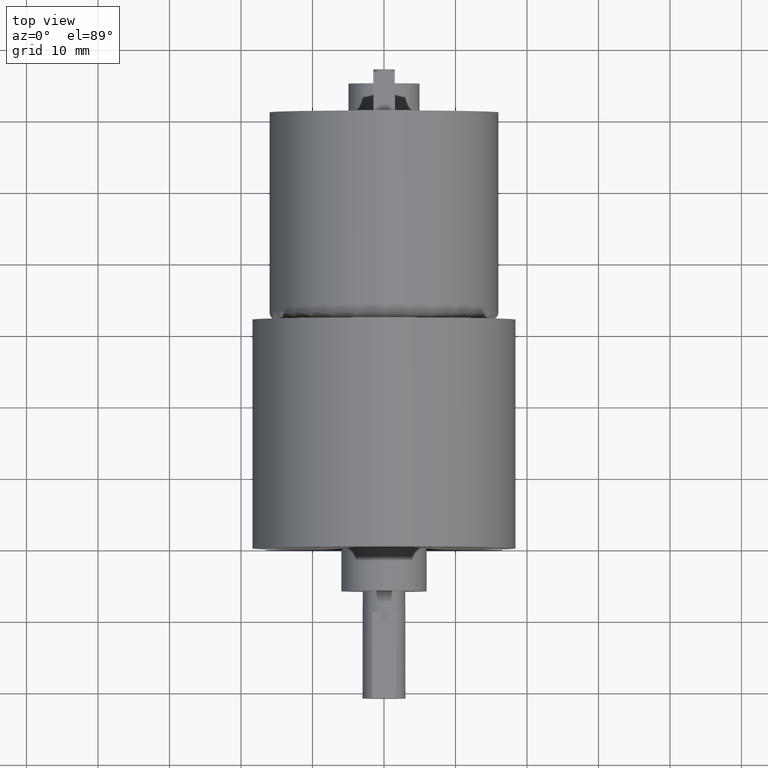
[diagram: clean part render]
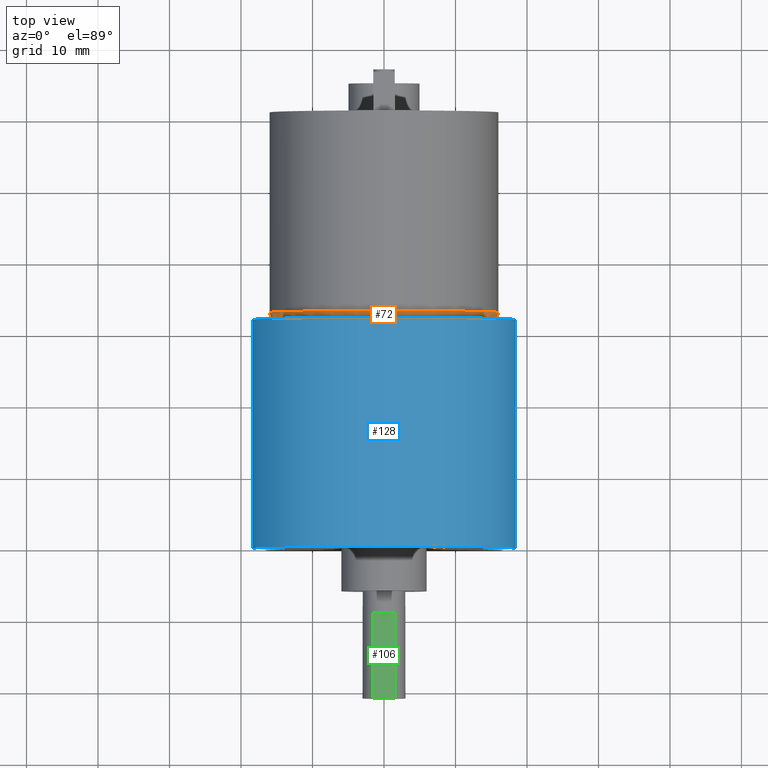
[diagram: same view with three faces highlighted in distinct colors, each labeled with its STEP entity id]
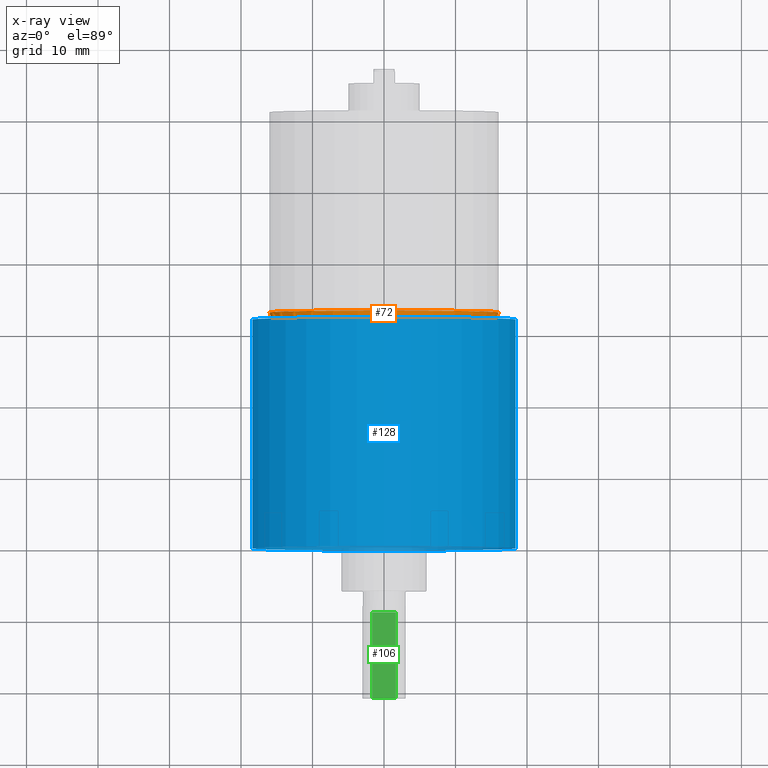
[diagram: x-ray of the same camera — body ghosted, the three highlighted faces saturated]
A machine part, top view with three faces highlighted in distinct colors.
The next image is the same camera in x-ray (body ghosted, the three faces saturated) — at least one of them is partly hidden behind the body in this view.
Their STEP definitions:

[orange] entity #72 — the highlighted toroidal blend (fillet) surface has major radius 15 mm and minor (blend) radius 1 mm.
#72 = ADVANCED_FACE( '', ( #171, #172 ), #173, .T. );
#171 = FACE_OUTER_BOUND( '', #318, .T. );
#172 = FACE_OUTER_BOUND( '', #319, .T. );
#173 = TOROIDAL_SURFACE( '', #320, 15.0000000000000, 1.00000000000000 );
#318 = EDGE_LOOP( '', ( #478 ) );
#319 = EDGE_LOOP( '', ( #479 ) );
#320 = AXIS2_PLACEMENT_3D( '', #480, #481, #482 );
#478 = ORIENTED_EDGE( '', *, *, #722, .F. );
#479 = ORIENTED_EDGE( '', *, *, #723, .T. );
#480 = CARTESIAN_POINT( '', ( 0.000000000000000, 33.0000000000000, 0.000000000000000 ) );
#481 = DIRECTION( '', ( 0.000000000000000, 1.00000000000000, -1.16882304974597E-018 ) );
#482 = DIRECTION( '', ( 0.000000000000000, 1.16882304974597E-018, 1.00000000000000 ) );
#722 = EDGE_CURVE( '', #827, #827, #828, .T. );
#723 = EDGE_CURVE( '', #829, #829, #830, .T. );
#827 = VERTEX_POINT( '', #974 );
#828 = CIRCLE( '', #975, 16.0000000000000 );
#829 = VERTEX_POINT( '', #976 );
#830 = CIRCLE( '', #977, 15.0000000000000 );
#974 = CARTESIAN_POINT( '', ( 0.000000000000000, 33.0000000000000, 16.0000000000000 ) );
#975 = AXIS2_PLACEMENT_3D( '', #1114, #1115, #1116 );
#976 = CARTESIAN_POINT( '', ( 0.000000000000000, 32.0000000000000, 15.0000000000000 ) );
#977 = AXIS2_PLACEMENT_3D( '', #1117, #1118, #1119 );
#1114 = CARTESIAN_POINT( '', ( 0.000000000000000, 33.0000000000000, -3.85711606416168E-017 ) );
#1115 = DIRECTION( '', ( 0.000000000000000, 1.00000000000000, -1.16882304974597E-018 ) );
#1116 = DIRECTION( '', ( 0.000000000000000, 1.16882304974597E-018, 1.00000000000000 ) );
#1117 = CARTESIAN_POINT( '', ( 0.000000000000000, 32.0000000000000, -3.74023375918709E-017 ) );
#1118 = DIRECTION( '', ( 0.000000000000000, 1.00000000000000, -1.16882304974597E-018 ) );
#1119 = DIRECTION( '', ( 0.000000000000000, 1.16882304974597E-018, 1.00000000000000 ) );

[blue] entity #128 — the highlighted cylindrical surface (bore or boss wall) has radius 18.5 mm, axis along (-0, -1, 0).
#128 = ADVANCED_FACE( '', ( #277, #278 ), #279, .T. );
#277 = FACE_OUTER_BOUND( '', #424, .T. );
#278 = FACE_OUTER_BOUND( '', #425, .T. );
#279 = CYLINDRICAL_SURFACE( '', #426, 18.5000000000000 );
#424 = EDGE_LOOP( '', ( #669 ) );
#425 = EDGE_LOOP( '', ( #670 ) );
#426 = AXIS2_PLACEMENT_3D( '', #671, #672, #673 );
#669 = ORIENTED_EDGE( '', *, *, #745, .F. );
#670 = ORIENTED_EDGE( '', *, *, #764, .T. );
#671 = CARTESIAN_POINT( '', ( 0.000000000000000, 92.6621544602951, -1.08305661972314E-016 ) );
#672 = DIRECTION( '', ( -0.000000000000000, -1.00000000000000, 1.16882304974597E-018 ) );
#673 = DIRECTION( '', ( 0.000000000000000, 1.16882304974597E-018, 1.00000000000000 ) );
#745 = EDGE_CURVE( '', #863, #863, #864, .T. );
#764 = EDGE_CURVE( '', #892, #892, #893, .T. );
#863 = VERTEX_POINT( '', #1015 );
#864 = CIRCLE( '', #1016, 18.5000000000000 );
#892 = VERTEX_POINT( '', #1046 );
#893 = CIRCLE( '', #1047, 18.5000000000000 );
#1015 = CARTESIAN_POINT( '', ( 0.000000000000000, 32.0000000000000, 18.5000000000000 ) );
#1016 = AXIS2_PLACEMENT_3D( '', #1149, #1150, #1151 );
#1046 = CARTESIAN_POINT( '', ( 0.000000000000000, 2.16232264203004E-017, 18.5000000000000 ) );
#1047 = AXIS2_PLACEMENT_3D( '', #1178, #1179, #1180 );
#1149 = CARTESIAN_POINT( '', ( 0.000000000000000, 32.0000000000000, -3.74023375918709E-017 ) );
#1150 = DIRECTION( '', ( 0.000000000000000, 1.00000000000000, -1.16882304974597E-018 ) );
#1151 = DIRECTION( '', ( 0.000000000000000, 1.16882304974597E-018, 1.00000000000000 ) );
#1178 = CARTESIAN_POINT( '', ( 0.000000000000000, 0.000000000000000, 1.92592994438724E-031 ) );
#1179 = DIRECTION( '', ( 0.000000000000000, 1.00000000000000, -1.16882304974597E-018 ) );
#1180 = DIRECTION( '', ( 0.000000000000000, 1.16882304974597E-018, 1.00000000000000 ) );

[green] entity #106 — the highlighted planar face has unit normal (0, -0, -1).
#106 = ADVANCED_FACE( '', ( #239 ), #240, .F. );
#239 = FACE_OUTER_BOUND( '', #386, .T. );
#240 = PLANE( '', #387 );
#386 = EDGE_LOOP( '', ( #589, #590, #591, #592 ) );
#387 = AXIS2_PLACEMENT_3D( '', #593, #594, #595 );
#589 = ORIENTED_EDGE( '', *, *, #766, .T. );
#590 = ORIENTED_EDGE( '', *, *, #767, .F. );
#591 = ORIENTED_EDGE( '', *, *, #768, .F. );
#592 = ORIENTED_EDGE( '', *, *, #769, .T. );
#593 = CARTESIAN_POINT( '', ( -1.65831239517770, -9.00000000000000, 2.50000000000000 ) );
#594 = DIRECTION( '', ( 1.30759701928095E-016, -1.16882304974597E-018, -1.00000000000000 ) );
#595 = DIRECTION( '', ( -1.00000000000000, 0.000000000000000, -1.30759701928095E-016 ) );
#766 = EDGE_CURVE( '', #895, #896, #897, .T. );
#767 = EDGE_CURVE( '', #898, #896, #899, .T. );
#768 = EDGE_CURVE( '', #900, #898, #901, .T. );
#769 = EDGE_CURVE( '', #900, #895, #902, .T. );
#895 = VERTEX_POINT( '', #1049 );
#896 = VERTEX_POINT( '', #1050 );
#897 = LINE( '', #1051, #1052 );
#898 = VERTEX_POINT( '', #1053 );
#899 = LINE( '', #1054, #1055 );
#900 = VERTEX_POINT( '', #1056 );
#901 = LINE( '', #1057, #1058 );
#902 = LINE( '', #1059, #1060 );
#1049 = CARTESIAN_POINT( '', ( -1.65831239517770, -21.0000000000000, 2.50000000000000 ) );
#1050 = CARTESIAN_POINT( '', ( 1.65831239517770, -21.0000000000000, 2.50000000000000 ) );
#1051 = CARTESIAN_POINT( '', ( -1.65831239517770, -21.0000000000000, 2.50000000000000 ) );
#1052 = VECTOR( '', #1181, 1000.00000000000 );
#1053 = CARTESIAN_POINT( '', ( 1.65831239517770, -9.00000000000000, 2.50000000000000 ) );
#1054 = CARTESIAN_POINT( '', ( 1.65831239517770, -9.00000000000000, 2.50000000000000 ) );
#1055 = VECTOR( '', #1182, 1000.00000000000 );
#1056 = CARTESIAN_POINT( '', ( -1.65831239517770, -9.00000000000000, 2.50000000000000 ) );
#1057 = CARTESIAN_POINT( '', ( -1.65831239517770, -9.00000000000000, 2.50000000000000 ) );
#1058 = VECTOR( '', #1183, 1000.00000000000 );
#1059 = CARTESIAN_POINT( '', ( -1.65831239517770, -9.00000000000000, 2.50000000000000 ) );
#1060 = VECTOR( '', #1184, 1000.00000000000 );
#1181 = DIRECTION( '', ( 1.00000000000000, 1.52834953591470E-034, 1.30759701928095E-016 ) );
#1182 = DIRECTION( '', ( 0.000000000000000, -1.00000000000000, 1.16882304974597E-018 ) );
#1183 = DIRECTION( '', ( 1.00000000000000, 1.52834953591470E-034, 1.30759701928095E-016 ) );
#1184 = DIRECTION( '', ( 0.000000000000000, -1.00000000000000, 1.16882304974597E-018 ) );